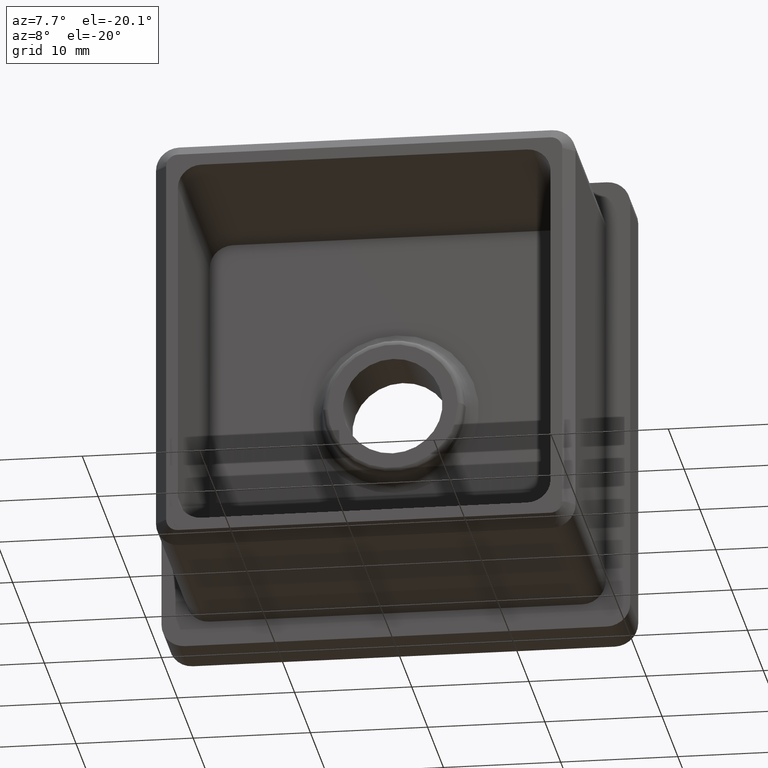
[diagram: clean part render]
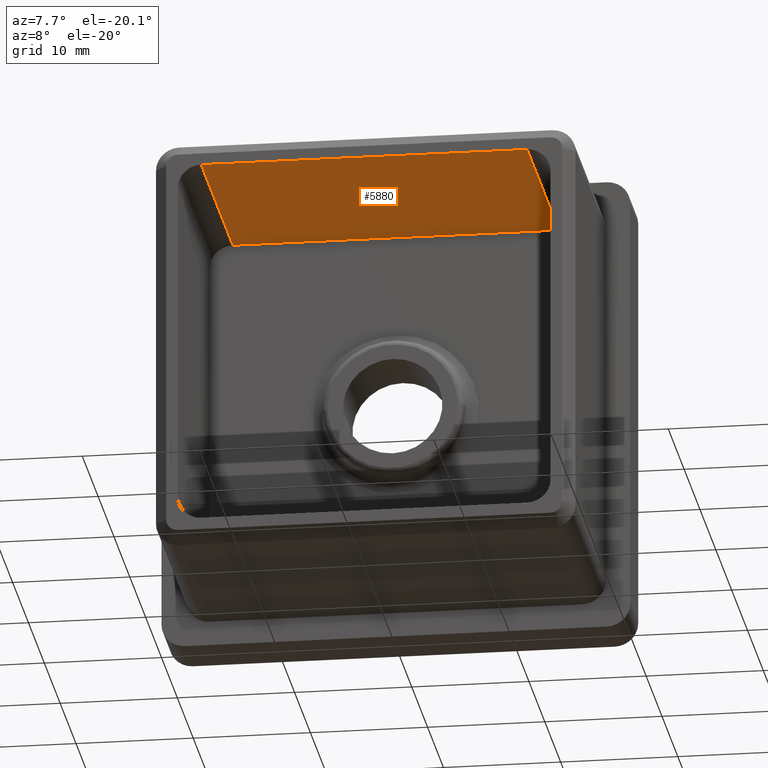
[diagram: same view with one face highlighted and labeled with its STEP entity id]
A machine part, auxiliary view. The second image highlights one B-rep face of the part: STEP entity #5880.
In plain terms, the highlighted planar face has unit normal (0, 0, -1).
Its self-contained STEP definition (entity closure, byte-faithful):
#419 = CARTESIAN_POINT ( 'NONE',  ( -13.90000000000000400, 0.0000000000000000000, 15.90000000000000400 ) ) ;
#793 = CARTESIAN_POINT ( 'NONE',  ( -13.90000000000000400, 0.0000000000000000000, 15.90000000000000400 ) ) ;
#1188 = VECTOR ( 'NONE', #8199, 1000.000000000000000 ) ;
#2651 = LINE ( 'NONE', #6192, #9312 ) ;
#3076 = CARTESIAN_POINT ( 'NONE',  ( -15.90000000000000400, -20.00000000000000000, 15.90000000000000400 ) ) ;
#4357 = DIRECTION ( 'NONE',  ( -1.000000000000000000, 0.0000000000000000000, -0.0000000000000000000 ) ) ;
#4387 = EDGE_LOOP ( 'NONE', ( #16098, #5846, #8302, #11551 ) ) ;
#4942 = DIRECTION ( 'NONE',  ( 0.0000000000000000000, -1.000000000000000000, -0.0000000000000000000 ) ) ;
#5310 = CARTESIAN_POINT ( 'NONE',  ( -13.90000000000000400, -20.00000000000000000, 15.90000000000000400 ) ) ;
#5846 = ORIENTED_EDGE ( 'NONE', *, *, #13198, .T. ) ;
#5880 = ADVANCED_FACE ( 'NONE', ( #15363 ), #10786, .T. ) ;
#6062 = VECTOR ( 'NONE', #13954, 1000.000000000000000 ) ;
#6192 = CARTESIAN_POINT ( 'NONE',  ( 13.90000000000000400, -20.00000000000000000, 15.90000000000000400 ) ) ;
#6667 = EDGE_CURVE ( 'NONE', #15399, #8735, #13972, .T. ) ;
#7891 = DIRECTION ( 'NONE',  ( -0.0000000000000000000, 1.000000000000000000, 0.0000000000000000000 ) ) ;
#8199 = DIRECTION ( 'NONE',  ( -1.000000000000000000, -0.0000000000000000000, -0.0000000000000000000 ) ) ;
#8302 = ORIENTED_EDGE ( 'NONE', *, *, #11824, .T. ) ;
#8735 = VERTEX_POINT ( 'NONE', #793 ) ;
#9161 = VERTEX_POINT ( 'NONE', #15005 ) ;
#9312 = VECTOR ( 'NONE', #4942, 1000.000000000000000 ) ;
#9468 = LINE ( 'NONE', #12297, #1188 ) ;
#10786 = PLANE ( 'NONE',  #14733 ) ;
#10953 = VERTEX_POINT ( 'NONE', #14743 ) ;
#11551 = ORIENTED_EDGE ( 'NONE', *, *, #6667, .T. ) ;
#11608 = EDGE_CURVE ( 'NONE', #10953, #8735, #14035, .T. ) ;
#11824 = EDGE_CURVE ( 'NONE', #9161, #15399, #9468, .T. ) ;
#12060 = DIRECTION ( 'NONE',  ( 0.0000000000000000000, 0.0000000000000000000, -1.000000000000000000 ) ) ;
#12082 = VECTOR ( 'NONE', #7891, 1000.000000000000000 ) ;
#12297 = CARTESIAN_POINT ( 'NONE',  ( -15.90000000000000400, -20.00000000000000000, 15.90000000000000400 ) ) ;
#13198 = EDGE_CURVE ( 'NONE', #10953, #9161, #2651, .T. ) ;
#13954 = DIRECTION ( 'NONE',  ( -1.000000000000000000, -0.0000000000000000000, -0.0000000000000000000 ) ) ;
#13972 = LINE ( 'NONE', #419, #12082 ) ;
#13997 = CARTESIAN_POINT ( 'NONE',  ( -15.90000000000000400, 0.0000000000000000000, 15.90000000000000400 ) ) ;
#14035 = LINE ( 'NONE', #13997, #6062 ) ;
#14733 = AXIS2_PLACEMENT_3D ( 'NONE', #3076, #12060, #4357 ) ;
#14743 = CARTESIAN_POINT ( 'NONE',  ( 13.90000000000000200, 0.0000000000000000000, 15.90000000000000400 ) ) ;
#15005 = CARTESIAN_POINT ( 'NONE',  ( 13.90000000000000200, -20.00000000000000000, 15.90000000000000400 ) ) ;
#15363 = FACE_OUTER_BOUND ( 'NONE', #4387, .T. ) ;
#15399 = VERTEX_POINT ( 'NONE', #5310 ) ;
#16098 = ORIENTED_EDGE ( 'NONE', *, *, #11608, .F. ) ;